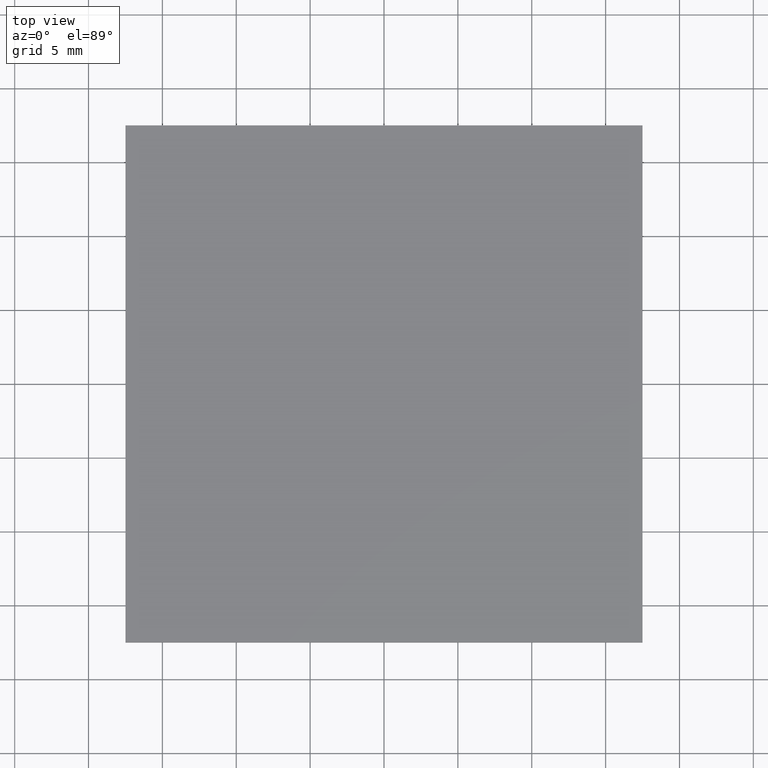
[diagram: clean part render]
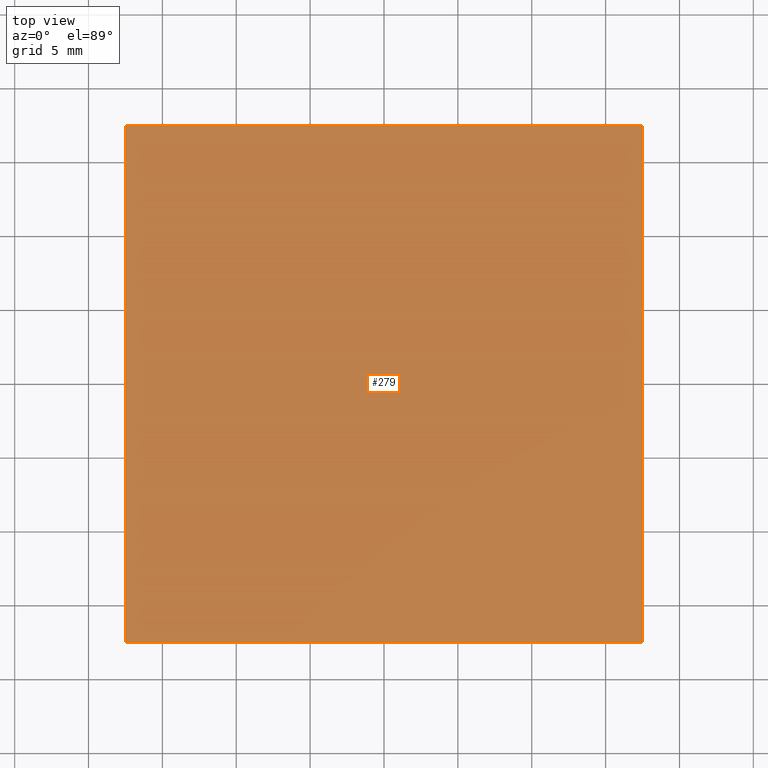
[diagram: same view with one face highlighted and labeled with its STEP entity id]
A machine part, top view. The second image highlights one B-rep face of the part: STEP entity #279.
In plain terms, the highlighted planar face has unit normal (0, 0, -1).
Its self-contained STEP definition (entity closure, byte-faithful):
#8 = CARTESIAN_POINT ( 'NONE',  ( 0.0000000000000000000, 0.0000000000000000000, 1.100000000000000100 ) ) ;
#10 = LINE ( 'NONE', #204, #123 ) ;
#16 = EDGE_CURVE ( 'NONE', #33, #271, #87, .T. ) ;
#33 = VERTEX_POINT ( 'NONE', #247 ) ;
#39 = DIRECTION ( 'NONE',  ( 1.000000000000000000, 0.0000000000000000000, 0.0000000000000000000 ) ) ;
#48 = EDGE_CURVE ( 'NONE', #60, #33, #272, .T. ) ;
#58 = ORIENTED_EDGE ( 'NONE', *, *, #48, .T. ) ;
#60 = VERTEX_POINT ( 'NONE', #163 ) ;
#66 = CARTESIAN_POINT ( 'NONE',  ( -17.50000000000000000, -17.50000000000000000, 1.100000000000000100 ) ) ;
#73 = EDGE_CURVE ( 'NONE', #271, #216, #10, .T. ) ;
#74 = EDGE_CURVE ( 'NONE', #216, #60, #193, .T. ) ;
#87 = LINE ( 'NONE', #232, #215 ) ;
#114 = ORIENTED_EDGE ( 'NONE', *, *, #16, .T. ) ;
#117 = DIRECTION ( 'NONE',  ( -1.000000000000000000, -0.0000000000000000000, -0.0000000000000000000 ) ) ;
#123 = VECTOR ( 'NONE', #117, 1000.000000000000000 ) ;
#124 = CARTESIAN_POINT ( 'NONE',  ( 17.50000000000000000, 17.50000000000000000, 1.100000000000000100 ) ) ;
#156 = VECTOR ( 'NONE', #39, 1000.000000000000000 ) ;
#159 = ORIENTED_EDGE ( 'NONE', *, *, #73, .T. ) ;
#163 = CARTESIAN_POINT ( 'NONE',  ( -17.50000000000000000, -17.50000000000000000, 1.100000000000000100 ) ) ;
#167 = CARTESIAN_POINT ( 'NONE',  ( -17.50000000000000000, 17.50000000000000000, 1.100000000000000100 ) ) ;
#193 = LINE ( 'NONE', #225, #223 ) ;
#199 = FACE_OUTER_BOUND ( 'NONE', #218, .T. ) ;
#204 = CARTESIAN_POINT ( 'NONE',  ( -17.50000000000000000, 17.50000000000000000, 1.100000000000000100 ) ) ;
#207 = PLANE ( 'NONE',  #295 ) ;
#215 = VECTOR ( 'NONE', #303, 1000.000000000000000 ) ;
#216 = VERTEX_POINT ( 'NONE', #167 ) ;
#218 = EDGE_LOOP ( 'NONE', ( #114, #159, #267, #58 ) ) ;
#223 = VECTOR ( 'NONE', #253, 1000.000000000000000 ) ;
#225 = CARTESIAN_POINT ( 'NONE',  ( -17.50000000000000000, -17.50000000000000000, 1.100000000000000100 ) ) ;
#232 = CARTESIAN_POINT ( 'NONE',  ( 17.50000000000000000, -17.50000000000000000, 1.100000000000000100 ) ) ;
#247 = CARTESIAN_POINT ( 'NONE',  ( 17.50000000000000000, -17.50000000000000000, 1.100000000000000100 ) ) ;
#253 = DIRECTION ( 'NONE',  ( -0.0000000000000000000, -1.000000000000000000, -0.0000000000000000000 ) ) ;
#267 = ORIENTED_EDGE ( 'NONE', *, *, #74, .T. ) ;
#271 = VERTEX_POINT ( 'NONE', #124 ) ;
#272 = LINE ( 'NONE', #66, #156 ) ;
#275 = DIRECTION ( 'NONE',  ( 0.0000000000000000000, 0.0000000000000000000, -1.000000000000000000 ) ) ;
#276 = DIRECTION ( 'NONE',  ( -1.000000000000000000, 0.0000000000000000000, -0.0000000000000000000 ) ) ;
#279 = ADVANCED_FACE ( 'NONE', ( #199 ), #207, .F. ) ;
#295 = AXIS2_PLACEMENT_3D ( 'NONE', #8, #275, #276 ) ;
#303 = DIRECTION ( 'NONE',  ( 0.0000000000000000000, 1.000000000000000000, 0.0000000000000000000 ) ) ;